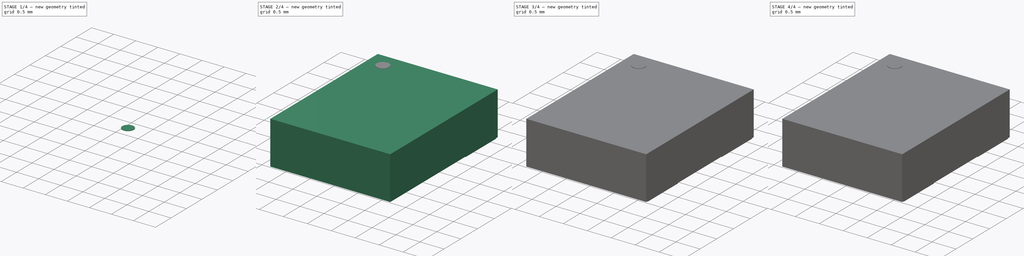
[diagram: build sequence overview — one tinted view per stage of 4, left to right]
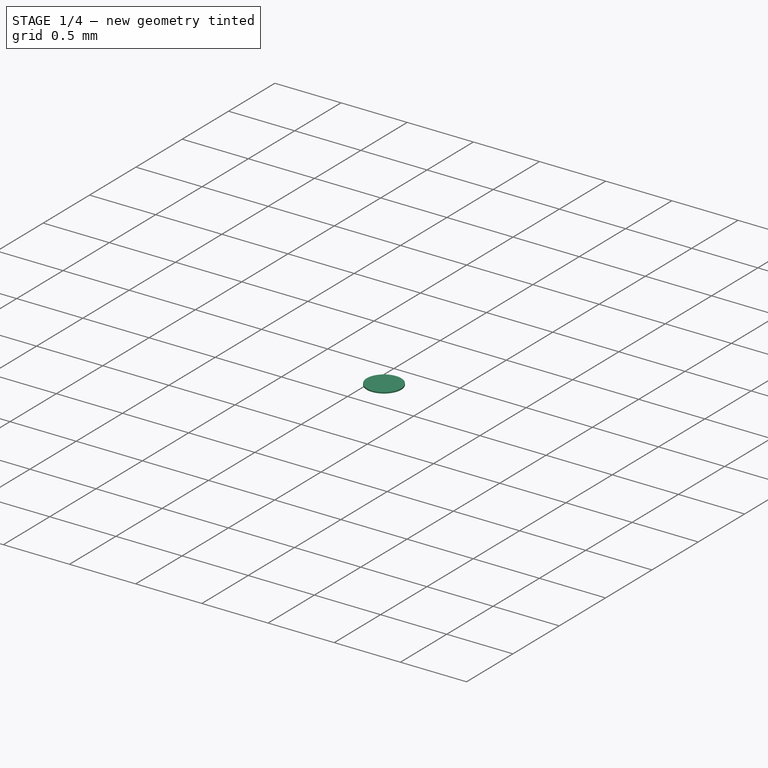
[diagram: stage 1 of 4 — iso view after this stage's code; geometry added in this stage tinted green]
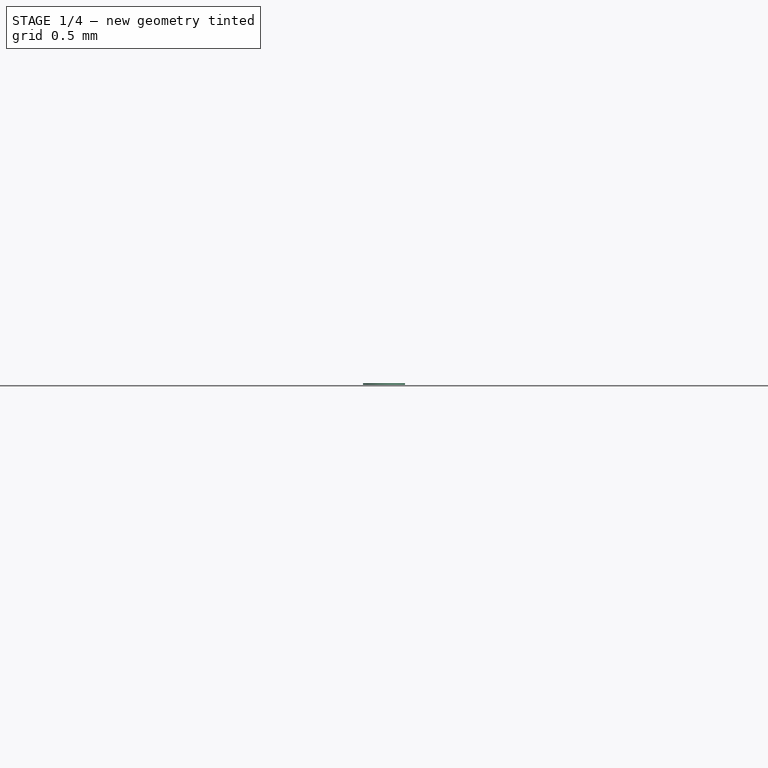
[diagram: stage 1 of 4 — front view after this stage's code; geometry added in this stage tinted green]
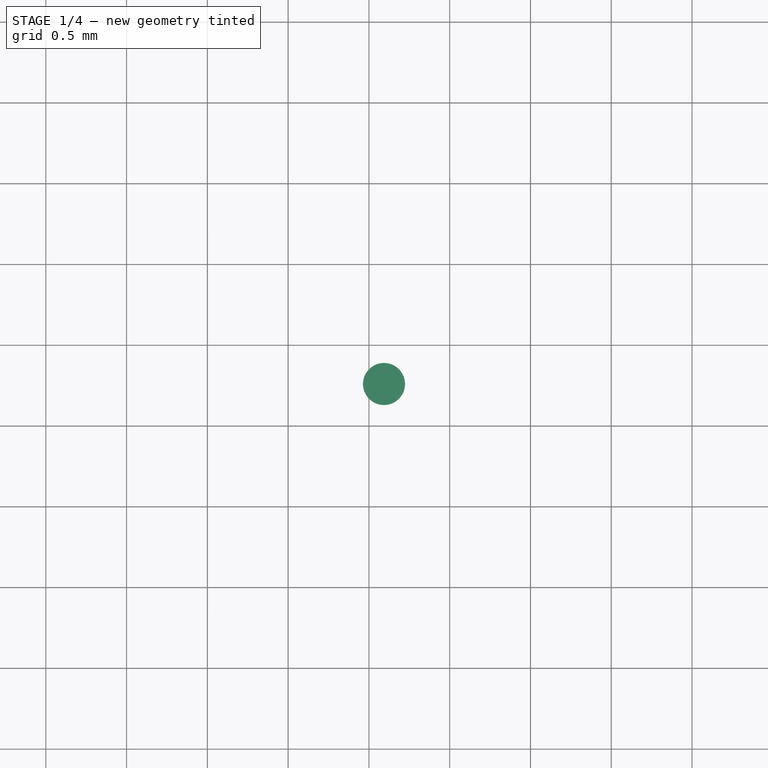
[diagram: stage 1 of 4 — top view after this stage's code; geometry added in this stage tinted green]
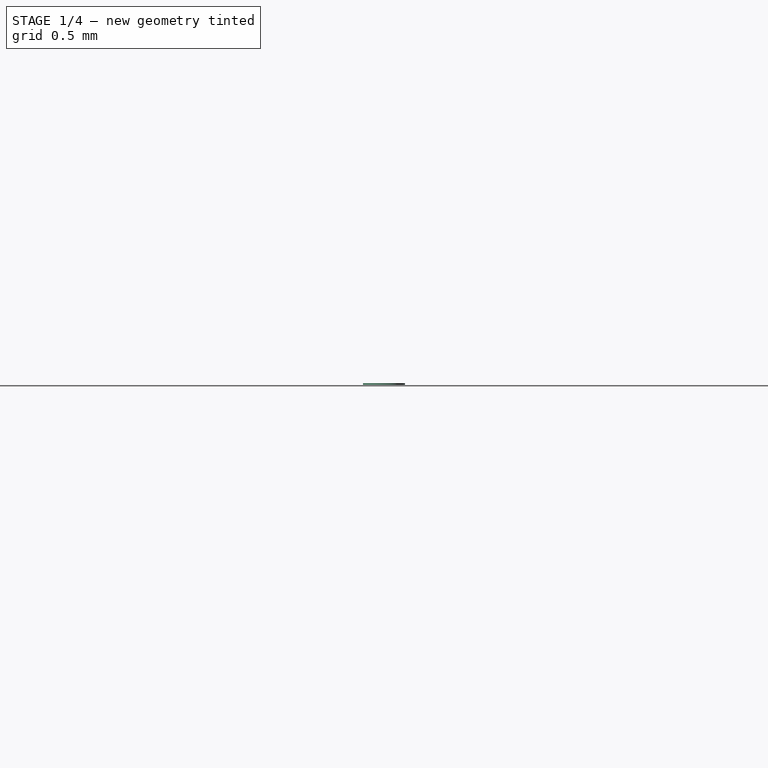
[diagram: stage 1 of 4 — right view after this stage's code; geometry added in this stage tinted green]
FCSTD DOCUMENT  (FreeCAD 0.16R6703 (Git))
Label: xtal-3_2x2_5
License: All rights reserved
LicenseURL: http://en.wikipedia.org/wiki/All_rights_reserved
objects: Part::FeaturePython×6, Part::Box×2, Part::Feature×1, Sketcher::SketchObject×1, PartDesign::Pad×1, Part::Cylinder×1, App::DocumentObjectGroup×1
note: 13 computed .brp shape members not serialized (recipe doc carries the construction recipe); baked Part::Feature solids carry a one-line shape summary decoded from their .brp

FEATURE [Part::Cylinder] Cylinder  label="mark-src"
  Angle = 360
  Height = 0.01
  Placement = pos=(-0.906689,1.26044,0.9) rot=(0,0,1;0rad)
  Radius = 0.13
FEATURE [App::DocumentObjectGroup] Group  label="src"
  Group = -> [Box,Box001,Pad,Cylinder]
FEATURE [Part::FeaturePython] Clone005  label="mark"  # Draft clone (typed FeaturePython)
  Objects = -> [Cylinder]
  Placement = pos=(-0.906689,1.26044,0.9) rot=(0,0,1;0rad)
  Scale = (1,1,1)
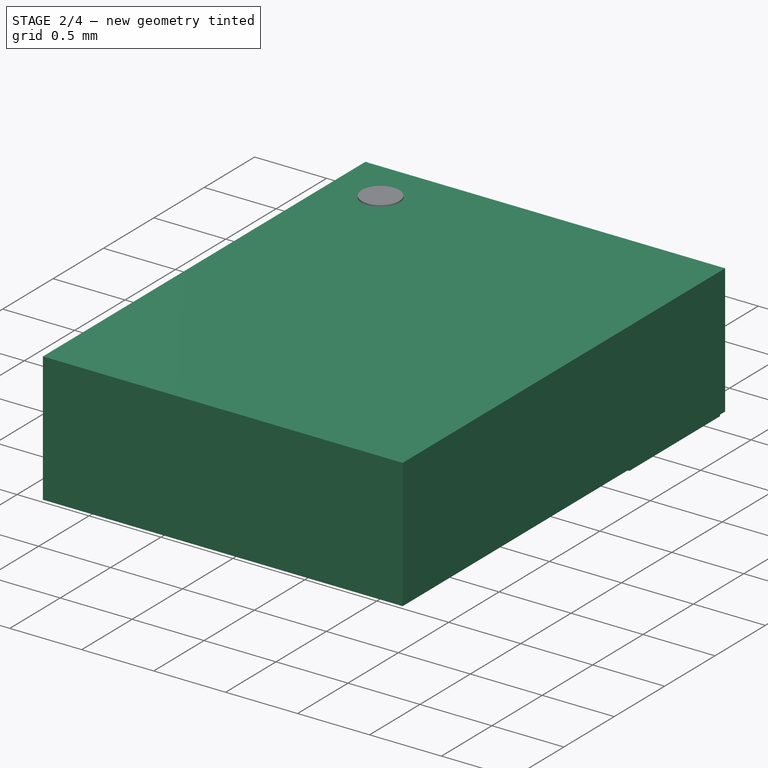
[diagram: stage 2 of 4 — iso view after this stage's code; geometry added in this stage tinted green]
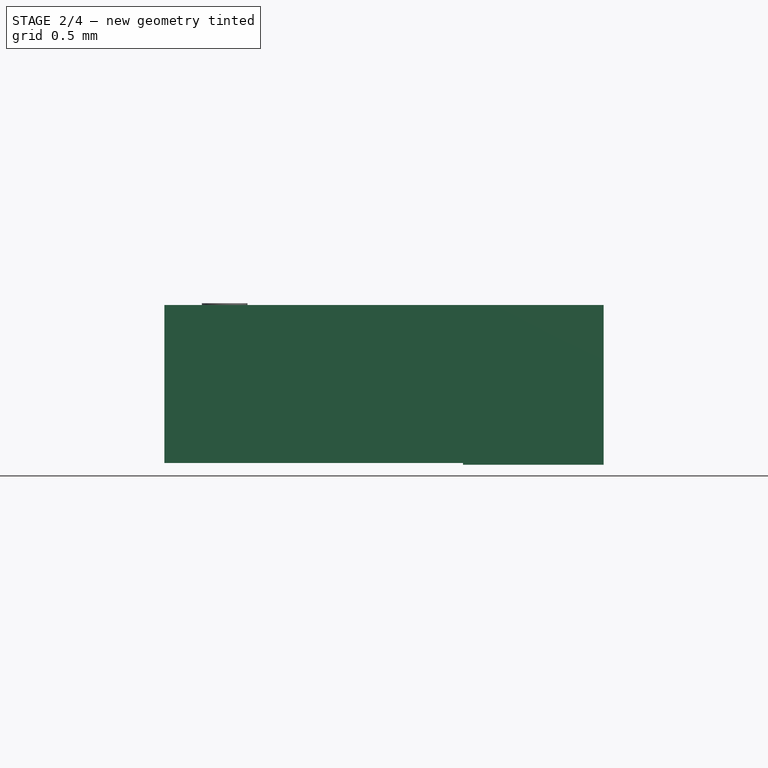
[diagram: stage 2 of 4 — front view after this stage's code; geometry added in this stage tinted green]
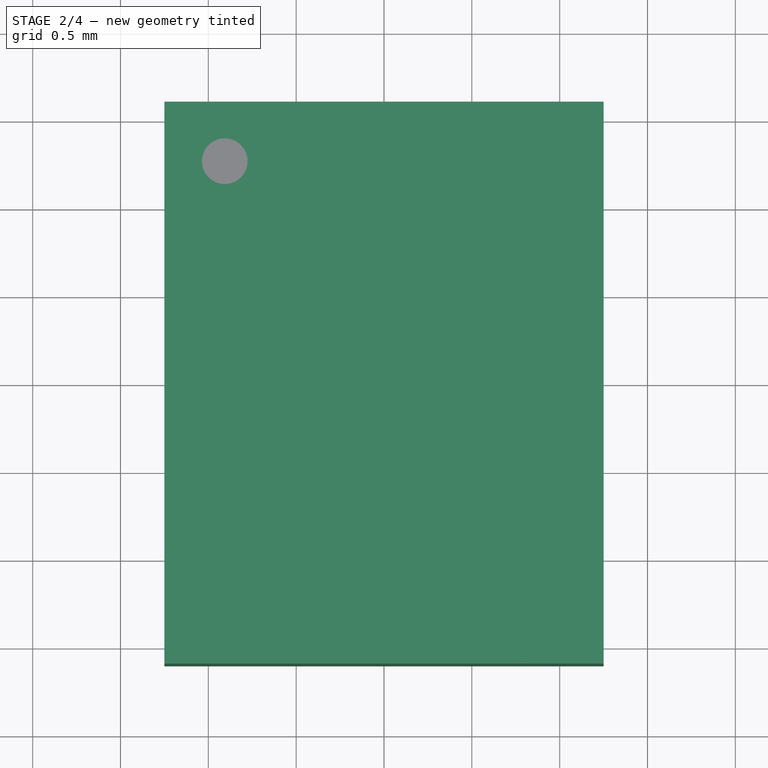
[diagram: stage 2 of 4 — top view after this stage's code; geometry added in this stage tinted green]
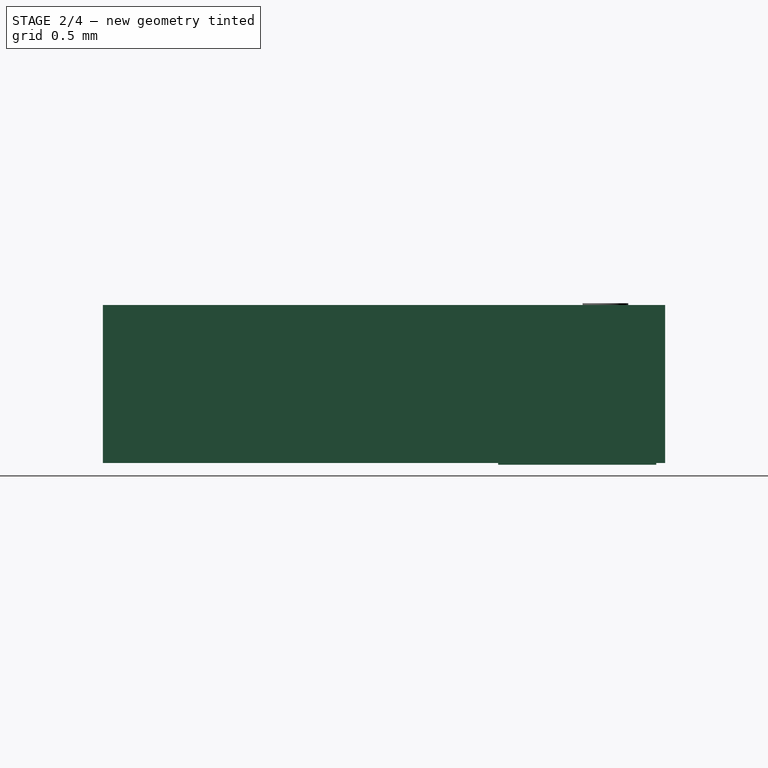
[diagram: stage 2 of 4 — right view after this stage's code; geometry added in this stage tinted green]
FEATURE [Part::Feature] Part__Feature354  label="User_Library-XTAL-3_2x2_5"
  Placement = pos=(3.9344e-08,0,0) rot=(0.57735,-0.57735,-0.57735;2.0944rad)
  shape: bbox 2.5 x 3.2 x 0.92 mm, 26 faces (baked)
FEATURE [Part::Box] Box  label="body-src"
  Height = 0.9
  Length = 2.5
  Placement = pos=(-1.25,-1.6,-5.464e-08) rot=(0,0,1;0rad)
  Width = 3.2
FEATURE [Part::Box] Box001  label="pad-src"
  Height = 0.01
  Length = 0.8
  Placement = pos=(0.45,0.65,-0.00999995) rot=(0,0,1;0rad)
  Width = 0.9
FEATURE [Part::FeaturePython] Clone004  label="body"  # Draft clone (typed FeaturePython)
  Objects = -> [Box]
  Placement = pos=(-1.25,-1.6,-5.464e-08) rot=(0,0,1;0rad)
  Scale = (1,1,1)
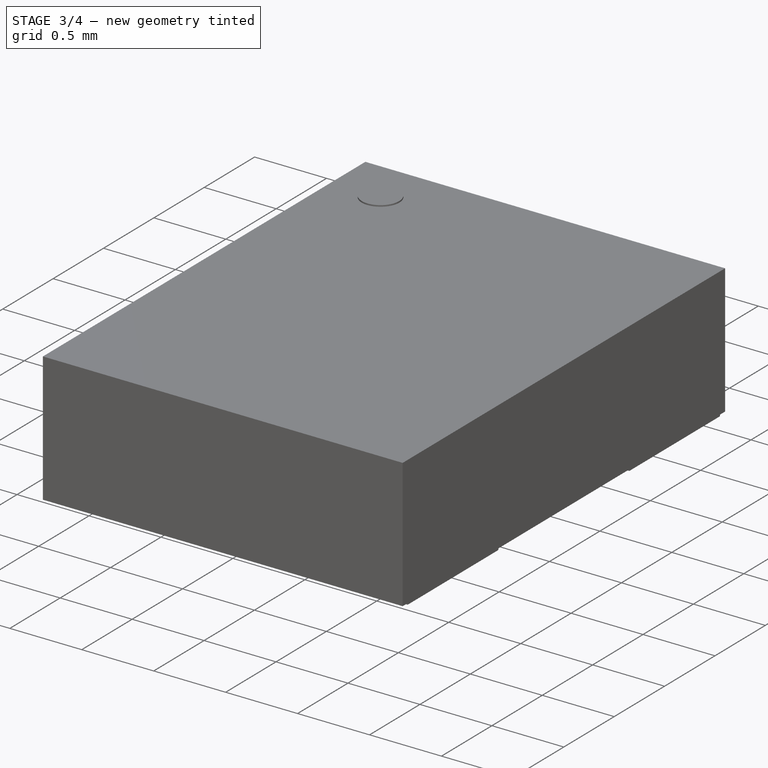
[diagram: stage 3 of 4 — iso view after this stage's code; geometry added in this stage tinted green]
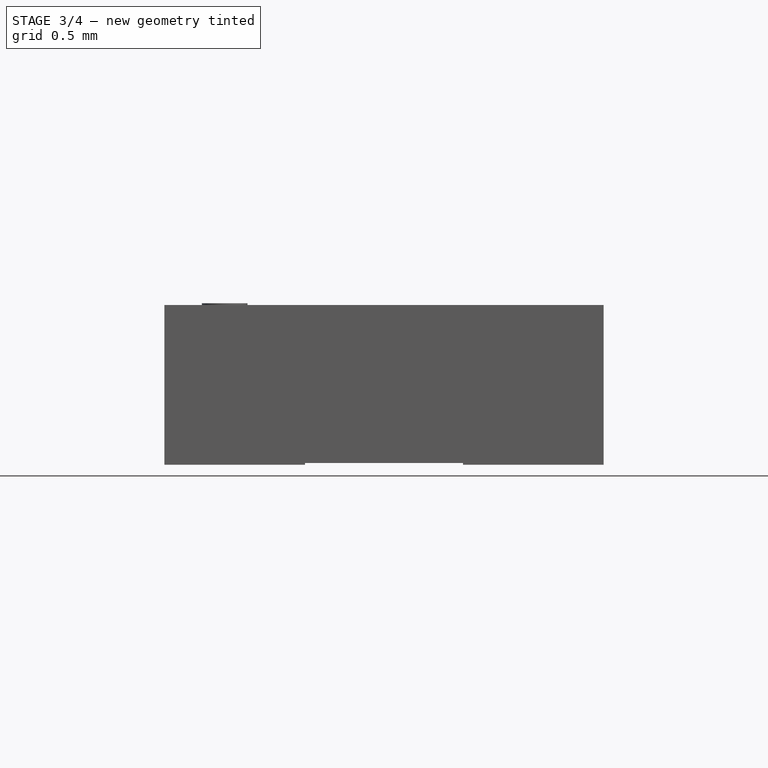
[diagram: stage 3 of 4 — front view after this stage's code; geometry added in this stage tinted green]
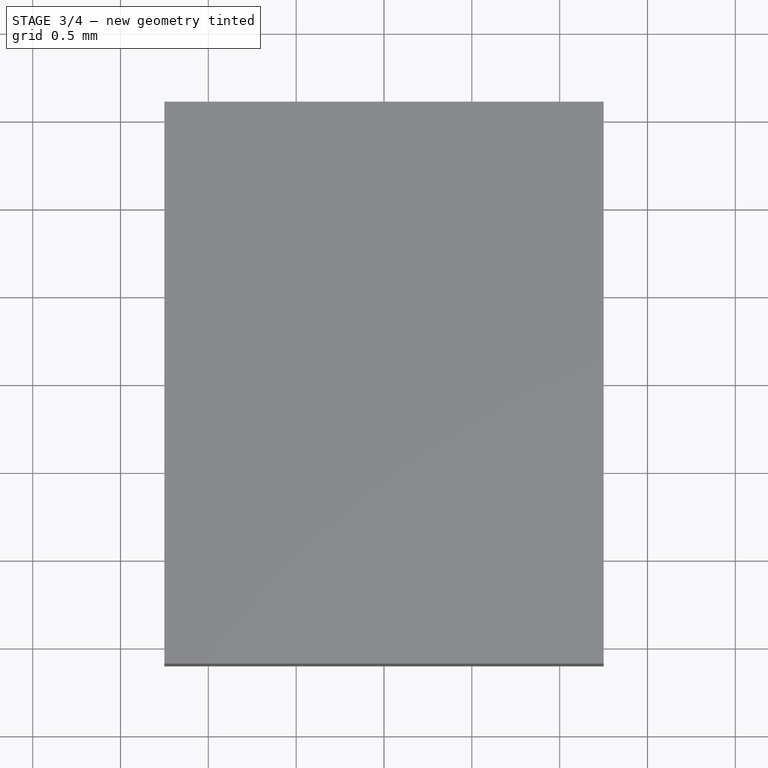
[diagram: stage 3 of 4 — top view after this stage's code; geometry added in this stage tinted green]
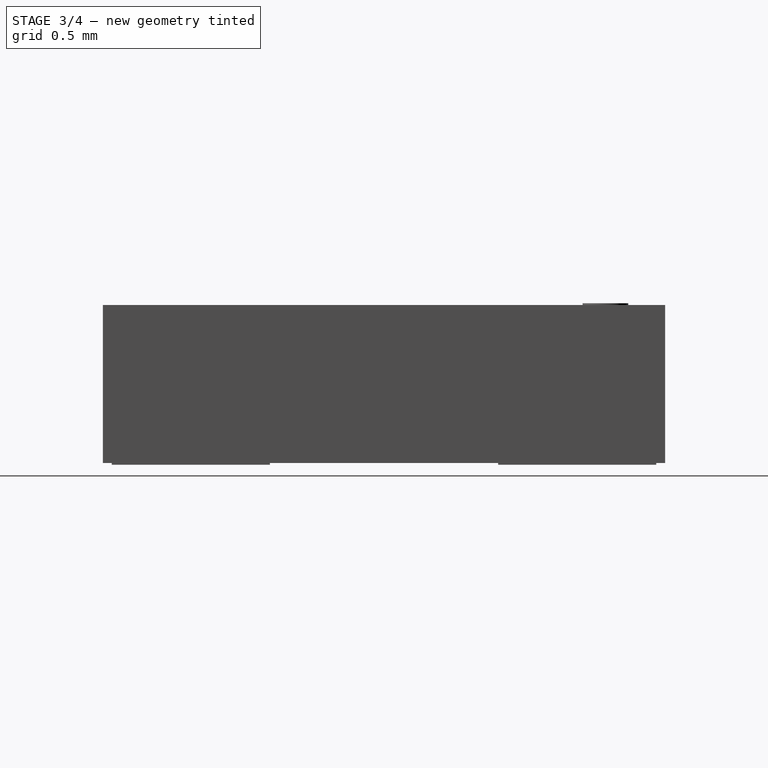
[diagram: stage 3 of 4 — right view after this stage's code; geometry added in this stage tinted green]
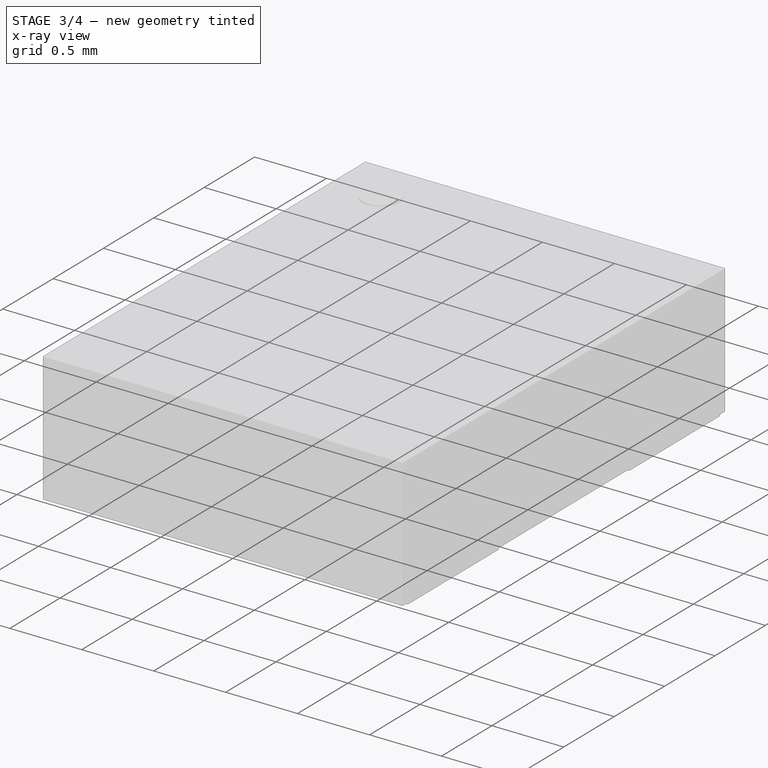
[diagram: stage 3 of 4 — x-ray composite at the iso view; earlier geometry ghosted, this stage's added geometry solid]
FEATURE [Part::FeaturePython] Clone001  label="pad4"  # Draft clone (typed FeaturePython)
  Objects = -> [Box001]
  Placement = pos=(0.45,0.65,-0.00999995) rot=(0,0,1;0rad)
  Scale = (1,1,1)
FEATURE [Part::FeaturePython] Clone002  label="pad2"  # Draft clone (typed FeaturePython)
  Objects = -> [Box001]
  Placement = pos=(-1.25,-1.55,-0.01) rot=(0,0,1;0rad)
  Scale = (1,1,1)
FEATURE [Part::FeaturePython] Clone003  label="pad3"  # Draft clone (typed FeaturePython)
  Objects = -> [Box001]
  Placement = pos=(0.45,-1.55,-0.00999995) rot=(0,0,1;0rad)
  Scale = (1,1,1)
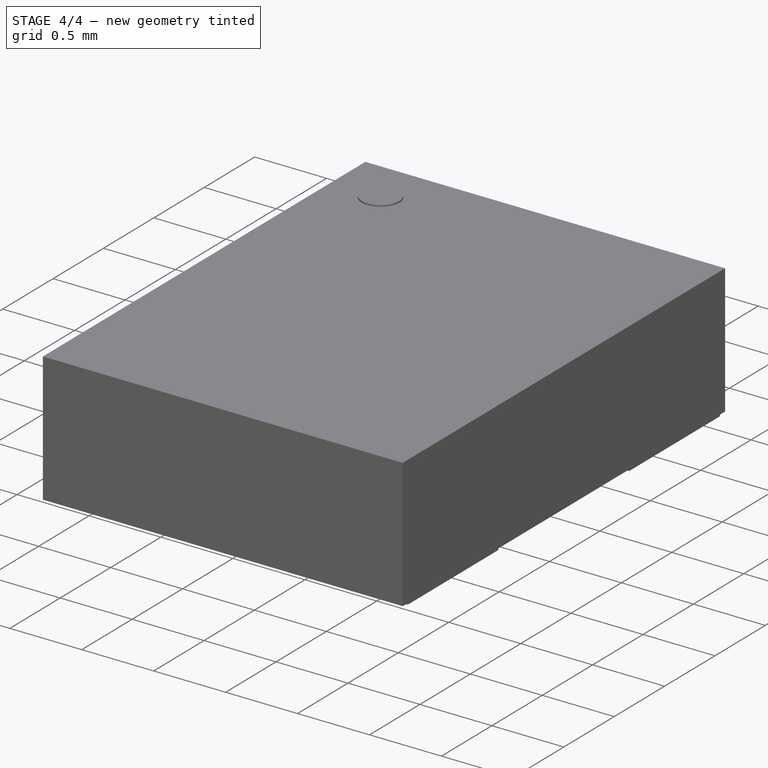
[diagram: stage 4 of 4 — iso view after this stage's code; geometry added in this stage tinted green]
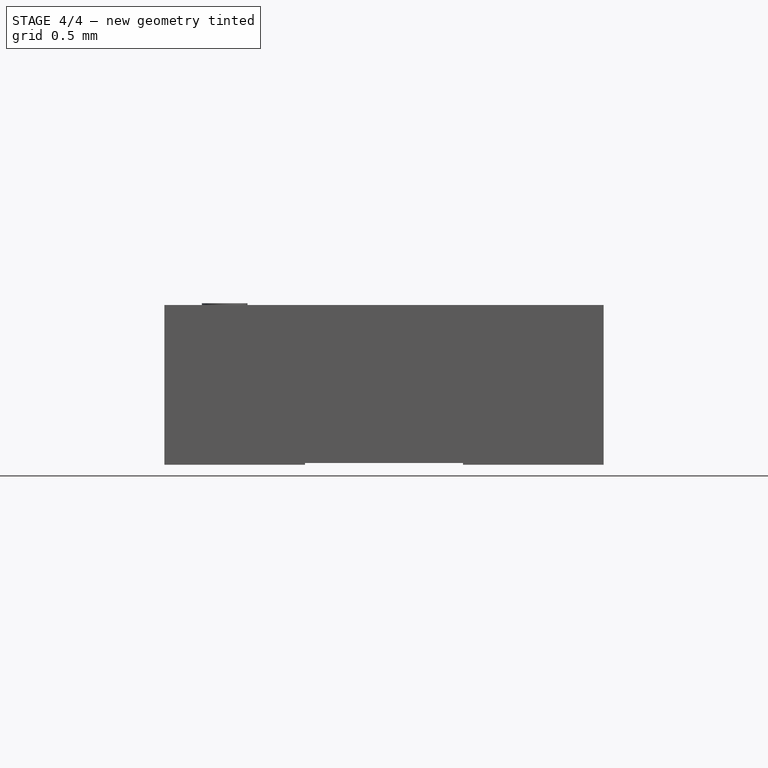
[diagram: stage 4 of 4 — front view after this stage's code; geometry added in this stage tinted green]
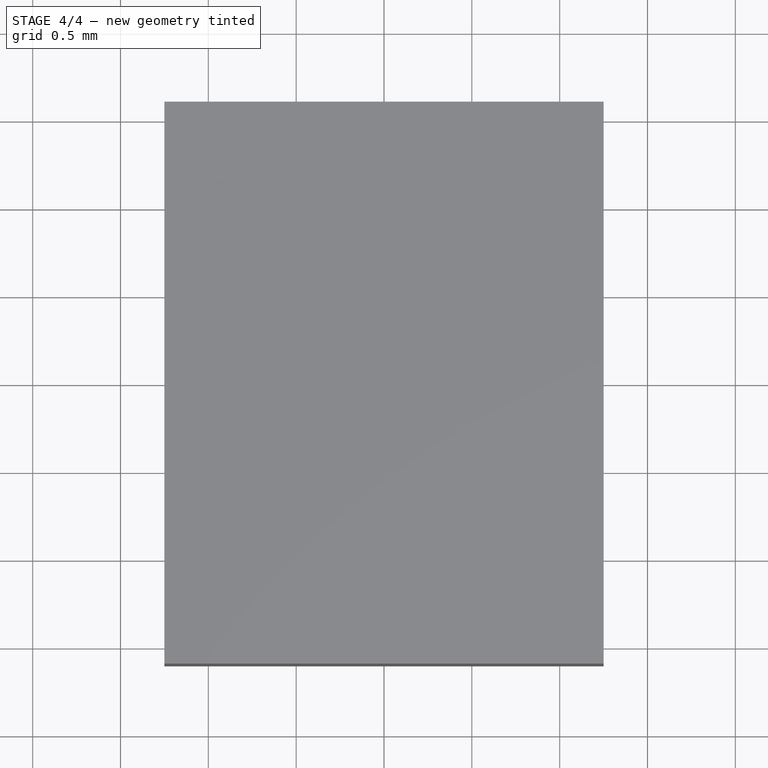
[diagram: stage 4 of 4 — top view after this stage's code; geometry added in this stage tinted green]
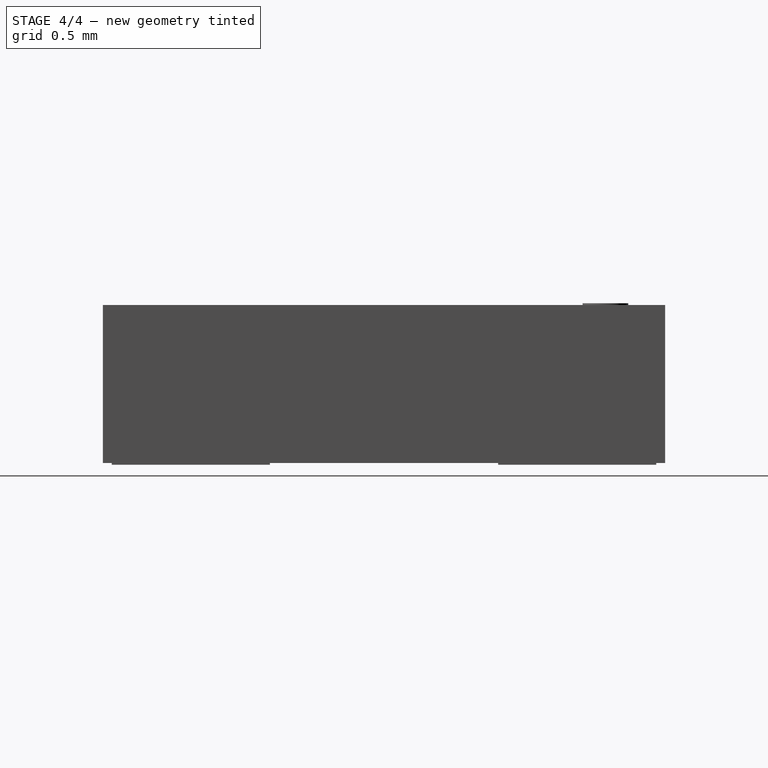
[diagram: stage 4 of 4 — right view after this stage's code; geometry added in this stage tinted green]
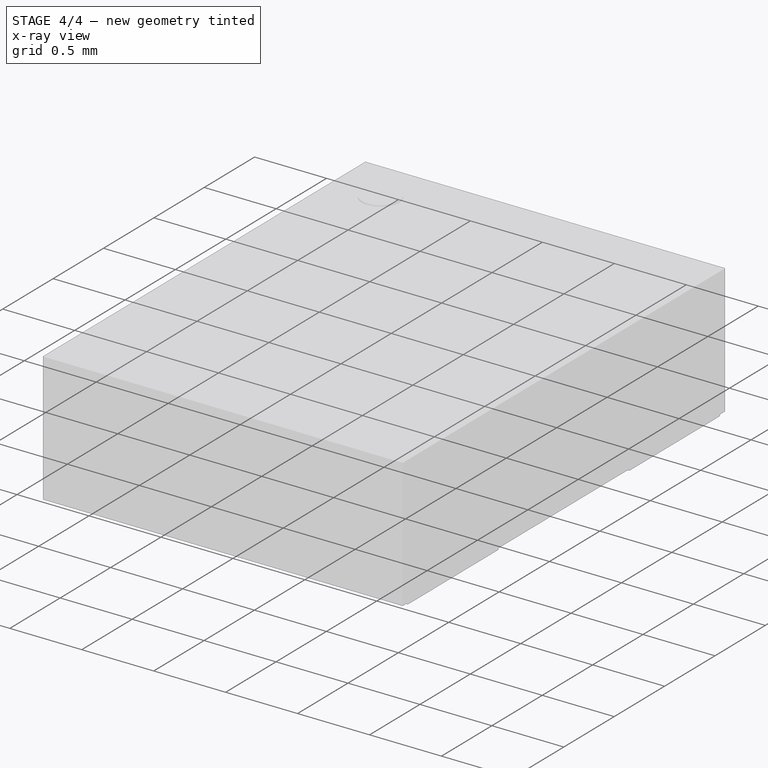
[diagram: stage 4 of 4 — x-ray composite at the iso view; earlier geometry ghosted, this stage's added geometry solid]
FEATURE [Sketcher::SketchObject] Sketch  label="pad1-sketch"
  sketch-geometry (5):
    g0: LineSegment StartX=0.8 StartY=0.45 StartZ=0 EndX=0.8 EndY=0 EndZ=0
    g1: LineSegment StartX=0.8 StartY=0 StartZ=0 EndX=0 EndY=0 EndZ=0
    g2: LineSegment StartX=0 StartY=0 StartZ=0 EndX=0 EndY=0.9 EndZ=0
    g3: LineSegment StartX=0 StartY=0.9 StartZ=0 EndX=0.4 EndY=0.9 EndZ=0
    g4: LineSegment StartX=0.4 StartY=0.9 StartZ=0 EndX=0.8 EndY=0.45 EndZ=0
  constraints (15):
    c: PointOnObject(g0,g-1)
    c: Vertical(g0)
    c: Coincident(g0,g1)
    c: Horizontal(g1)
    c: Coincident(g1,g2)
    c: Vertical(g2)
    c: Coincident(g2,g3)
    c: Horizontal(g3)
    c: Coincident(g3,g4)
    c: Coincident(g4,g0)
    c: PointOnObject(g2,g-2)
    c: DistanceX(g1,g1) = 0.8
    c: DistanceY(g2,g2) = 0.9
    c: DistanceX(g3,g3) = 0.4
    c: DistanceY(g0,g0) = 0.45
FEATURE [PartDesign::Pad] Pad  label="pad1-src"
  Length = 0.01
  Length2 = 100
  Sketch = -> Sketch
  Type = 0
FEATURE [Part::FeaturePython] Clone  label="pad1"  # Draft clone (typed FeaturePython)
  Objects = -> [Pad]
  Placement = pos=(-1.25,0.65,-0.0100001) rot=(0,0,1;0rad)
  Scale = (1,1,1)
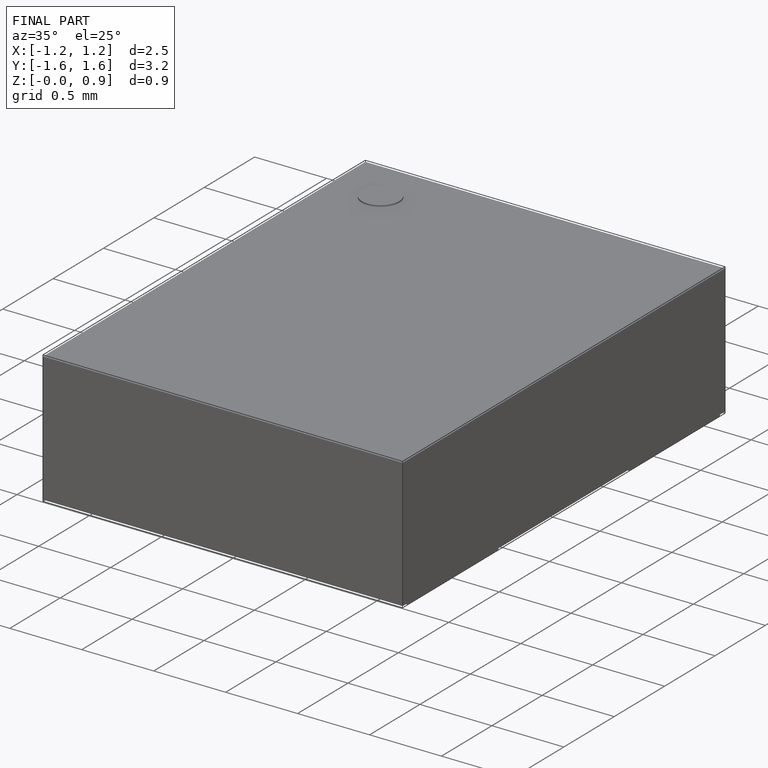
[diagram: finished part — iso view with bounding-box wireframe]
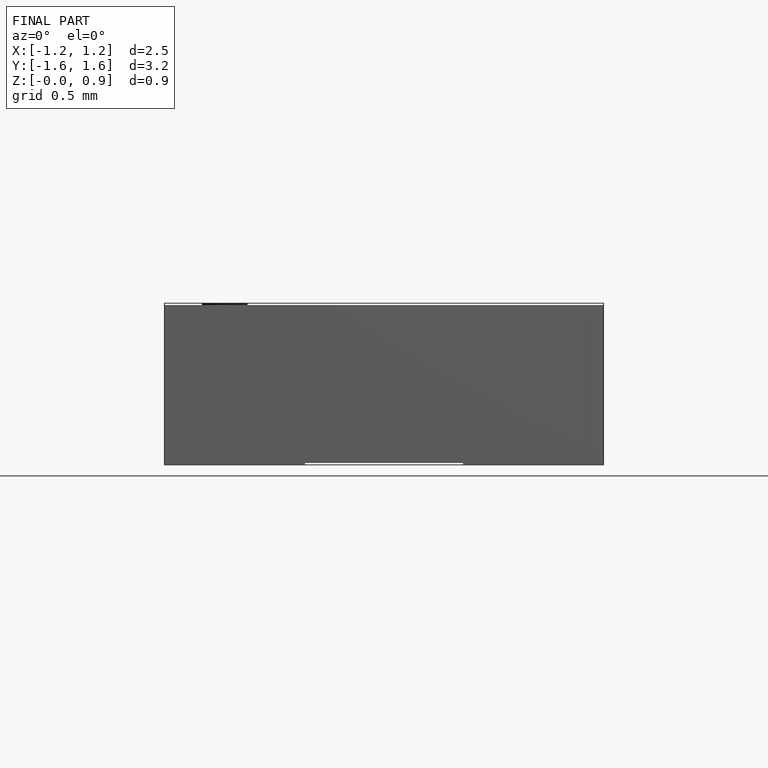
[diagram: finished part — front view with bounding-box wireframe]
